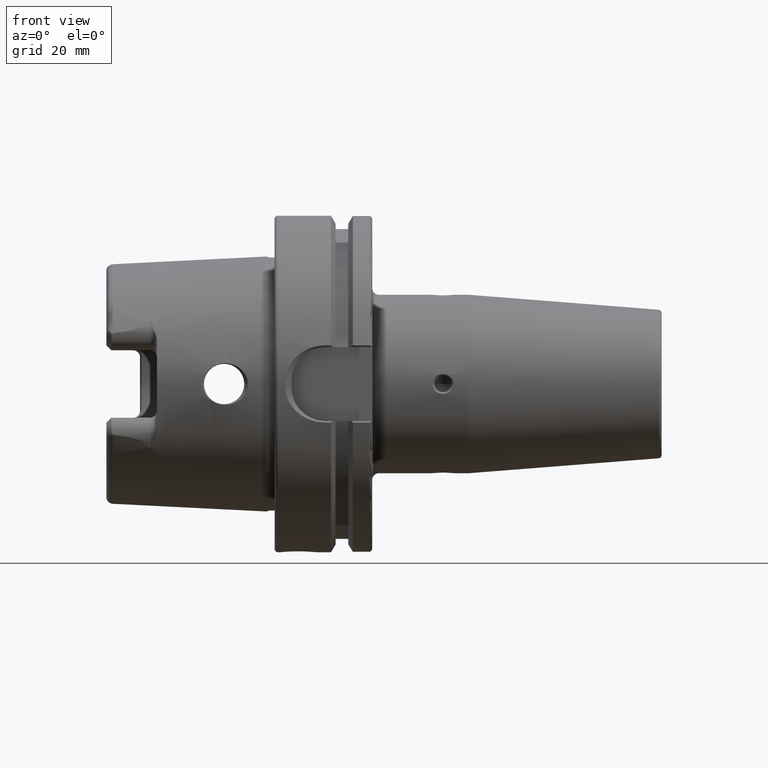
[diagram: clean part render]
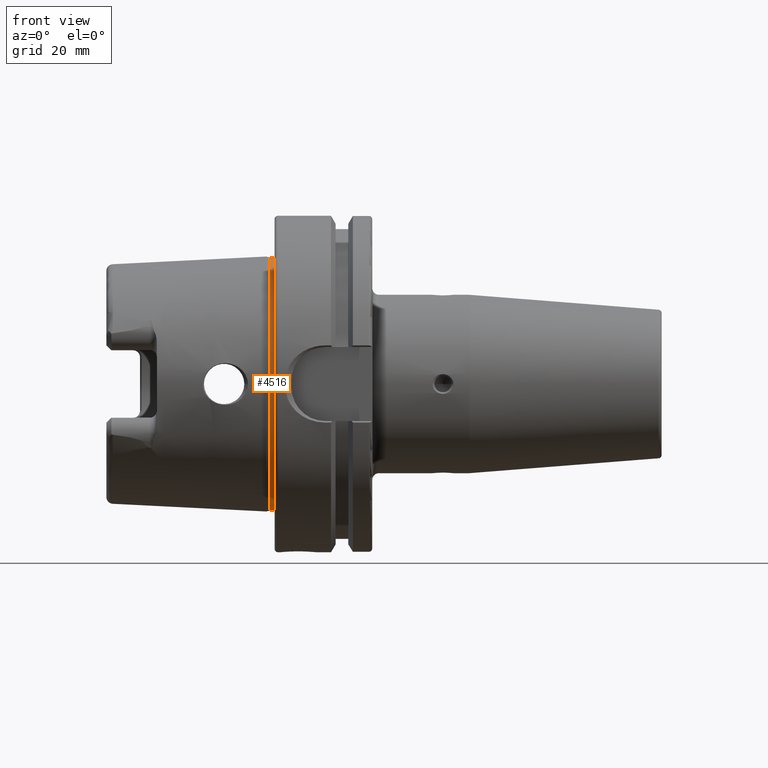
[diagram: same view with one face highlighted and labeled with its STEP entity id]
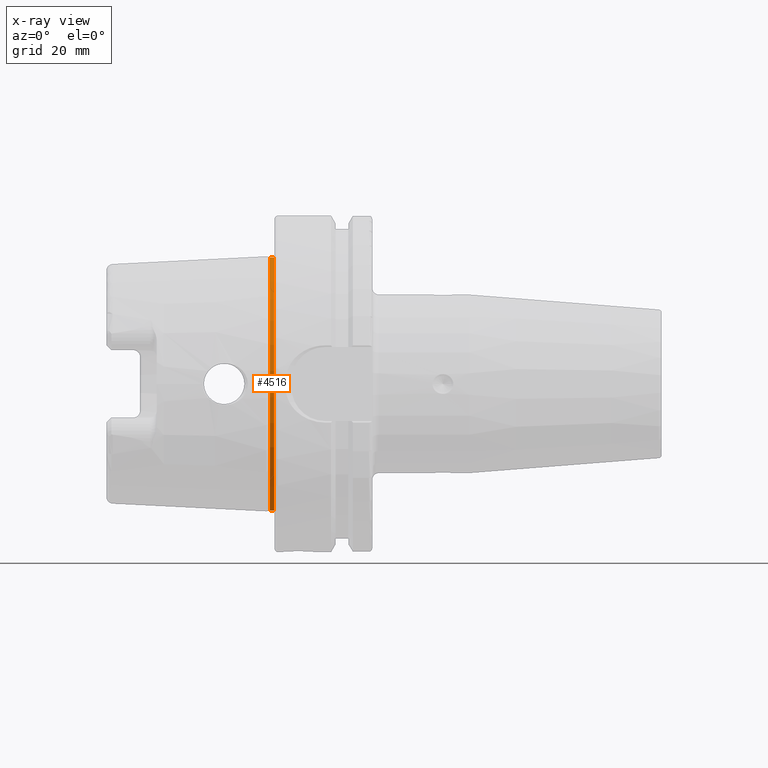
[diagram: x-ray of the same camera — body ghosted, the highlighted face saturated]
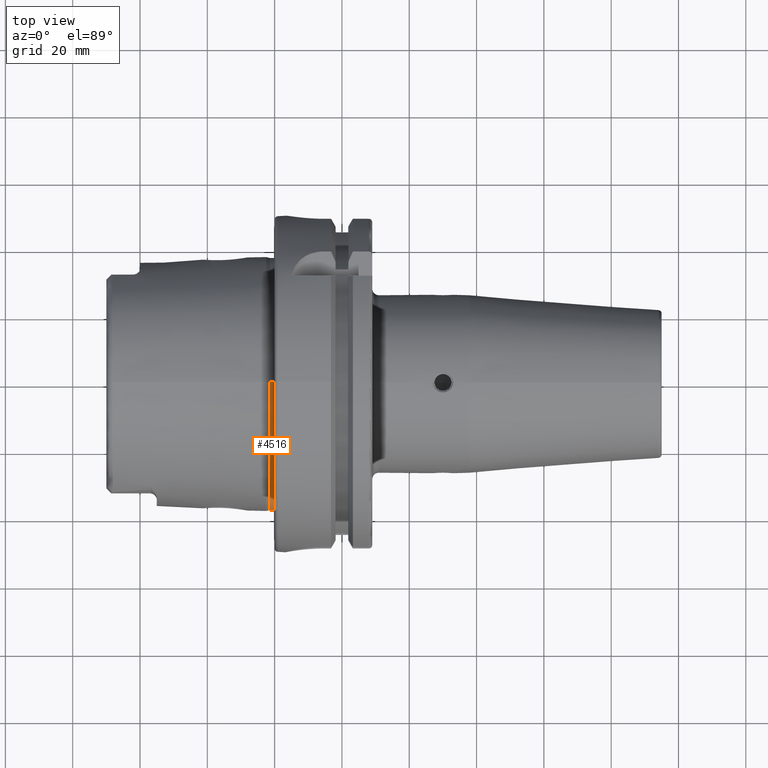
[diagram: same view with one face highlighted and labeled with its STEP entity id]
A machine part, front view. The second image highlights one B-rep face of the part: STEP entity #4516.
The next image is the same camera in x-ray: the body ghosted, the highlighted face saturated — about 0% of this face is hidden behind the body in this view.
A second angle (top view) of the same face is appended — the face is thin or edge-on in the first view.
In plain terms, the highlighted cylindrical surface (partial cylindrical patch) has radius 37.5822 mm, axis along (1, 0, 0).
Its self-contained STEP definition (entity closure, byte-faithful):
#1190=CARTESIAN_POINT('',(-1.650116100134E-1,0.E0,0.E0));
#1191=DIRECTION('',(-1.E0,0.E0,0.E0));
#1192=DIRECTION('',(0.E0,0.E0,-1.E0));
#1193=AXIS2_PLACEMENT_3D('',#1190,#1191,#1192);
#1195=DIRECTION('',(1.E0,3.737945225149E-9,-5.992026404496E-11));
#1196=VECTOR('',#1195,1.252693655511E0);
#1197=CARTESIAN_POINT('',(-1.417705265525E0,-4.620363995368E-9,
-3.758219999992E1));
#1198=LINE('',#1197,#1196);
#1199=CARTESIAN_POINT('',(-1.417705265805E0,0.E0,0.E0));
#1200=DIRECTION('',(-1.E0,0.E0,0.E0));
#1201=DIRECTION('',(0.E0,0.E0,-1.E0));
#1202=AXIS2_PLACEMENT_3D('',#1199,#1200,#1201);
#1204=DIRECTION('',(1.E0,-3.737950702583E-9,5.992026404496E-11));
#1205=VECTOR('',#1204,1.252693655511E0);
#1206=CARTESIAN_POINT('',(-1.417705265525E0,4.620368587231E-9,
3.758219999992E1));
#1207=LINE('',#1206,#1205);
#2820=CARTESIAN_POINT('',(-1.417705265805E0,0.E0,-3.75822E1));
#2821=CARTESIAN_POINT('',(-1.417705265805E0,0.E0,3.75822E1));
#2822=VERTEX_POINT('',#2820);
#2823=VERTEX_POINT('',#2821);
#2830=CARTESIAN_POINT('',(-1.650116100134E-1,0.E0,-3.75822E1));
#2831=CARTESIAN_POINT('',(-1.650116100134E-1,0.E0,3.75822E1));
#2832=VERTEX_POINT('',#2830);
#2833=VERTEX_POINT('',#2831);
#4502=CARTESIAN_POINT('',(0.E0,0.E0,0.E0));
#4503=DIRECTION('',(1.E0,0.E0,0.E0));
#4504=DIRECTION('',(0.E0,0.E0,1.E0));
#4505=AXIS2_PLACEMENT_3D('',#4502,#4503,#4504);
#4506=CYLINDRICAL_SURFACE('',#4505,3.75822E1);
#4508=ORIENTED_EDGE('',*,*,#4507,.F.);
#4510=ORIENTED_EDGE('',*,*,#4509,.F.);
#4511=ORIENTED_EDGE('',*,*,#4492,.T.);
#4513=ORIENTED_EDGE('',*,*,#4512,.T.);
#4514=EDGE_LOOP('',(#4508,#4510,#4511,#4513));
#4515=FACE_OUTER_BOUND('',#4514,.F.);
#4516=ADVANCED_FACE('',(#4515),#4506,.T.);
#1194=CIRCLE('',#1193,3.75822E1);
#1203=CIRCLE('',#1202,3.75822E1);
#4492=EDGE_CURVE('',#2822,#2823,#1203,.T.);
#4507=EDGE_CURVE('',#2832,#2833,#1194,.T.);
#4509=EDGE_CURVE('',#2822,#2832,#1198,.T.);
#4512=EDGE_CURVE('',#2823,#2833,#1207,.T.);